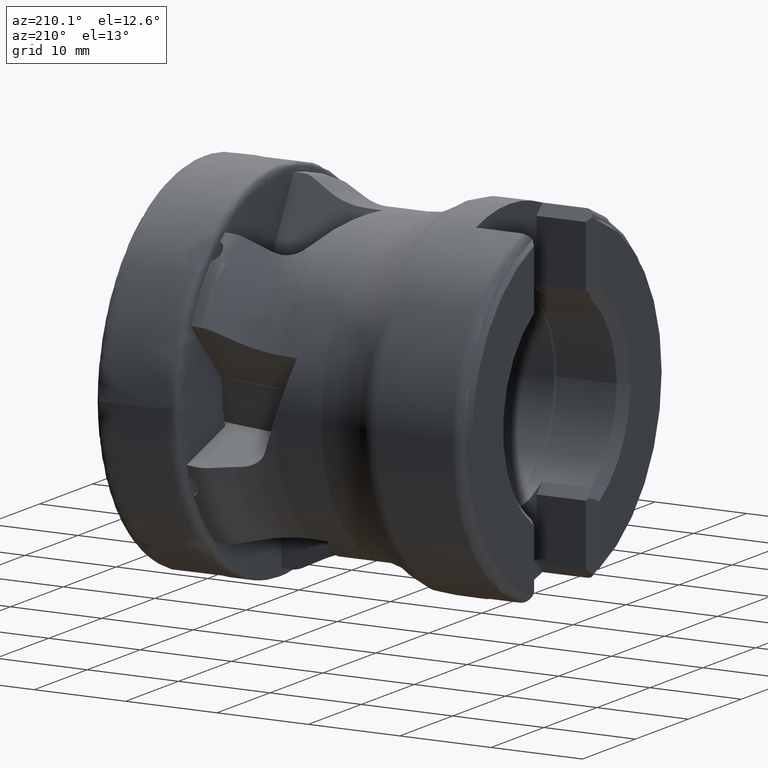
[diagram: clean part render]
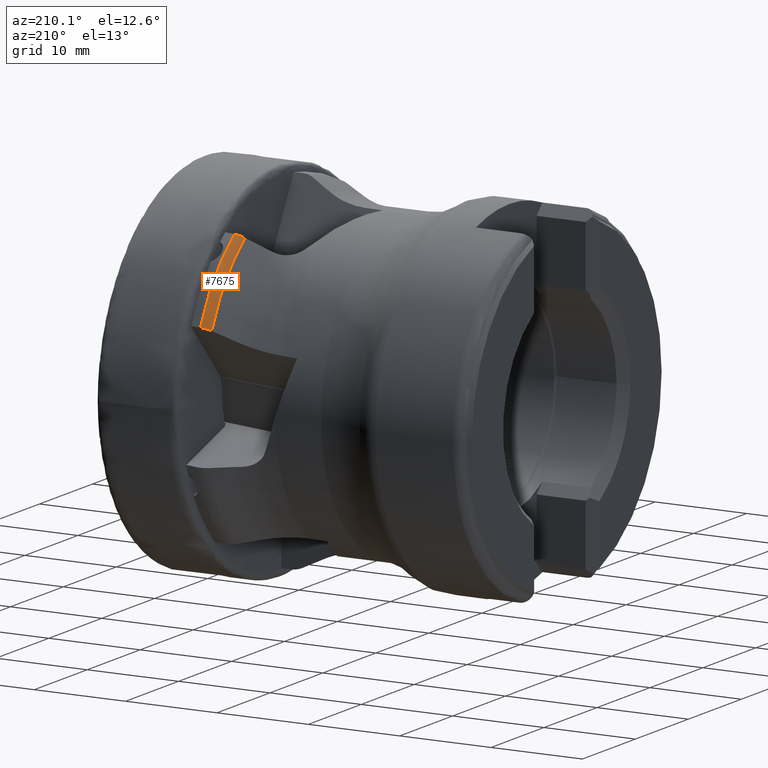
[diagram: same view with one face highlighted and labeled with its STEP entity id]
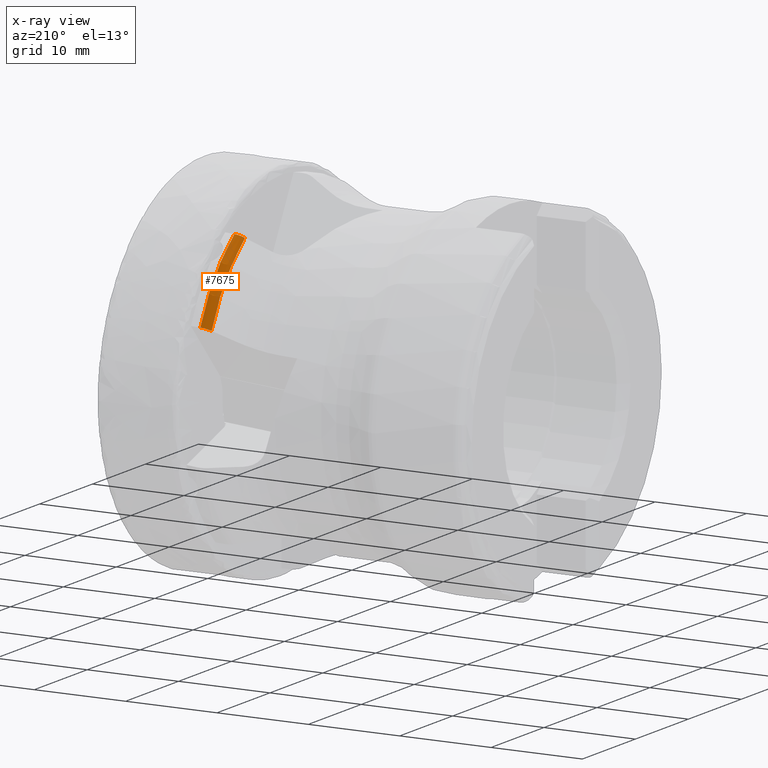
[diagram: x-ray of the same camera — body ghosted, the highlighted face saturated]
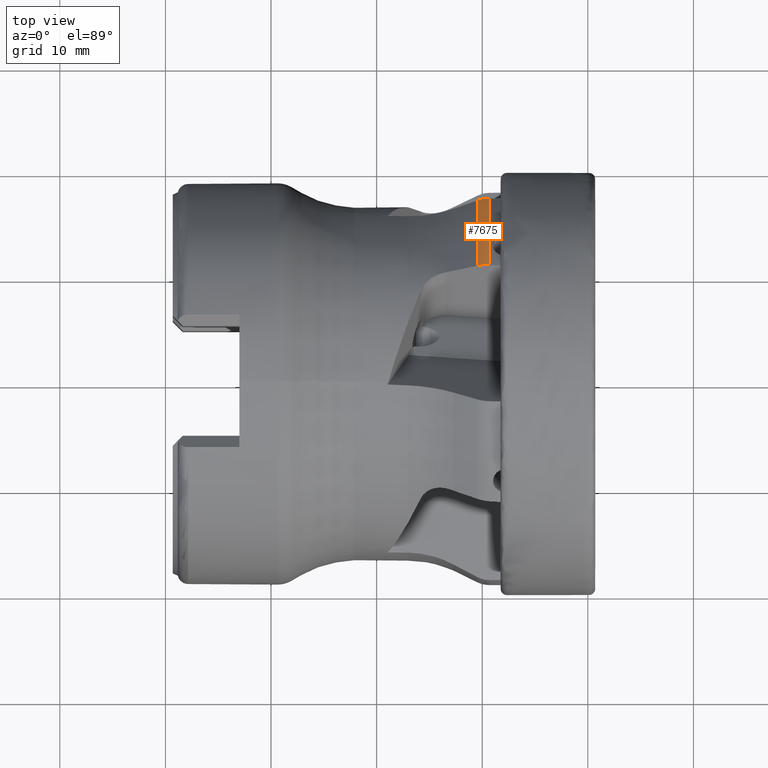
[diagram: same view with one face highlighted and labeled with its STEP entity id]
A machine part, auxiliary view. The second image highlights one B-rep face of the part: STEP entity #7675.
The next image is the same camera in x-ray: the body ghosted, the highlighted face saturated — about 0% of this face is hidden behind the body in this view.
A second angle (top view) of the same face is appended — the face is thin or edge-on in the first view.
In plain terms, the highlighted toroidal blend (fillet) surface has major radius 16.5654 mm and minor (blend) radius 2.5 mm.
Its self-contained STEP definition (entity closure, byte-faithful):
#13 = CARTESIAN_POINT ( 'NONE',  ( -10.43251948672131300, 10.95326937035892800, 15.30600121862880600 ) ) ;
#94 = DIRECTION ( 'NONE',  ( 0.0000000000000000000, 0.0000000000000000000, -1.000000000000000000 ) ) ;
#124 = FACE_OUTER_BOUND ( 'NONE', #5109, .T. ) ;
#202 = EDGE_CURVE ( 'NONE', #3423, #4860, #6753, .T. ) ;
#253 = CARTESIAN_POINT ( 'NONE',  ( -9.309999999999998700, 11.01640560779502400, 15.55998176363142500 ) ) ;
#339 = EDGE_CURVE ( 'NONE', #7665, #3423, #5323, .T. ) ;
#593 = CARTESIAN_POINT ( 'NONE',  ( -9.310000000000000500, 17.42928360953007400, 7.726208504730265300 ) ) ;
#835 = CARTESIAN_POINT ( 'NONE',  ( -9.310000000000000500, 0.0000000000000000000, 0.0000000000000000000 ) ) ;
#1130 = CARTESIAN_POINT ( 'NONE',  ( -9.702680607006957600, 17.42321054025614700, 7.699589275538603100 ) ) ;
#1246 = B_SPLINE_CURVE_WITH_KNOTS ( 'NONE', 3,
 ( #253, #8370, #1614, #6364, #2285, #7032 ),
 .UNSPECIFIED., .F., .F.,
 ( 4, 2, 4 ),
 ( 1.979558588764968500E-007, 0.0005776445492866515200, 0.001155091142714426700 ),
 .UNSPECIFIED. ) ;
#1283 = ORIENTED_EDGE ( 'NONE', *, *, #3638, .F. ) ;
#1368 = ORIENTED_EDGE ( 'NONE', *, *, #202, .F. ) ;
#1614 = CARTESIAN_POINT ( 'NONE',  ( -9.695566953765849800, 11.03487616424329700, 15.52801474276923900 ) ) ;
#1937 = TOROIDAL_SURFACE ( 'NONE', #7895, 16.56541217592417300, 2.500000000000001300 ) ;
#2285 = CARTESIAN_POINT ( 'NONE',  ( -10.25682413912926800, 10.99007541114749700, 15.38281169229427400 ) ) ;
#2293 = EDGE_CURVE ( 'NONE', #7665, #4350, #6852, .T. ) ;
#2550 = ORIENTED_EDGE ( 'NONE', *, *, #2293, .T. ) ;
#2586 = CARTESIAN_POINT ( 'NONE',  ( -10.43251948672131300, 0.0000000000000000000, 0.0000000000000000000 ) ) ;
#2745 = CARTESIAN_POINT ( 'NONE',  ( -10.25955516804223700, 17.32438353801770200, 7.565096309777906000 ) ) ;
#3124 = CARTESIAN_POINT ( 'NONE',  ( -10.43251948672131500, 17.26557548167848600, 7.493175994915122700 ) ) ;
#3273 = DIRECTION ( 'NONE',  ( 0.0000000000000000000, 0.0000000000000000000, -1.000000000000000000 ) ) ;
#3423 = VERTEX_POINT ( 'NONE', #593 ) ;
#3464 = CARTESIAN_POINT ( 'NONE',  ( -9.355395040829007400, 0.0000000000000000000, 0.0000000000000000000 ) ) ;
#3638 = EDGE_CURVE ( 'NONE', #4860, #4350, #1246, .T. ) ;
#4350 = VERTEX_POINT ( 'NONE', #13 ) ;
#4860 = VERTEX_POINT ( 'NONE', #7379 ) ;
#5109 = EDGE_LOOP ( 'NONE', ( #5187, #2550, #1283, #1368 ) ) ;
#5187 = ORIENTED_EDGE ( 'NONE', *, *, #339, .F. ) ;
#5323 = B_SPLINE_CURVE_WITH_KNOTS ( 'NONE', 3,
 ( #3124, #2745, #7077, #1130, #7958, #8326 ),
 .UNSPECIFIED., .F., .F.,
 ( 4, 2, 4 ),
 ( 2.239223321823669100E-007, 0.0005811725970693216400, 0.001162121271806460900 ),
 .UNSPECIFIED. ) ;
#6364 = CARTESIAN_POINT ( 'NONE',  ( -10.07126196175136100, 11.01393485222972600, 15.44327132457146600 ) ) ;
#6403 = DIRECTION ( 'NONE',  ( 0.0000000000000000000, 0.0000000000000000000, -1.000000000000000000 ) ) ;
#6753 = CIRCLE ( 'NONE', #7855, 19.06500000000000100 ) ;
#6850 = DIRECTION ( 'NONE',  ( 1.000000000000000000, -0.0000000000000000000, -0.0000000000000000000 ) ) ;
#6852 = CIRCLE ( 'NONE', #8491, 18.82147133473654700 ) ;
#7032 = CARTESIAN_POINT ( 'NONE',  ( -10.43251948672131300, 10.95326937035892800, 15.30600121862880600 ) ) ;
#7077 = CARTESIAN_POINT ( 'NONE',  ( -10.07902217916911700, 17.36772865214121700, 7.620822192385527500 ) ) ;
#7336 = DIRECTION ( 'NONE',  ( 1.000000000000000000, -0.0000000000000000000, -0.0000000000000000000 ) ) ;
#7379 = CARTESIAN_POINT ( 'NONE',  ( -9.309999999999998700, 11.01640560779502400, 15.55998176363142500 ) ) ;
#7462 = DIRECTION ( 'NONE',  ( 1.000000000000000000, -0.0000000000000000000, -0.0000000000000000000 ) ) ;
#7533 = CARTESIAN_POINT ( 'NONE',  ( -10.43251948672131500, 17.26557548167848600, 7.493175994915122700 ) ) ;
#7665 = VERTEX_POINT ( 'NONE', #7533 ) ;
#7675 = ADVANCED_FACE ( 'NONE', ( #124 ), #1937, .T. ) ;
#7855 = AXIS2_PLACEMENT_3D ( 'NONE', #835, #7462, #6403 ) ;
#7895 = AXIS2_PLACEMENT_3D ( 'NONE', #3464, #6850, #94 ) ;
#7958 = CARTESIAN_POINT ( 'NONE',  ( -9.506315135752370100, 17.43494716623975900, 7.722229884548331000 ) ) ;
#8326 = CARTESIAN_POINT ( 'NONE',  ( -9.310000000000000500, 17.42928360953007400, 7.726208504730265300 ) ) ;
#8370 = CARTESIAN_POINT ( 'NONE',  ( -9.504468645397388100, 11.03236860123417700, 15.55300733054696700 ) ) ;
#8491 = AXIS2_PLACEMENT_3D ( 'NONE', #2586, #7336, #3273 ) ;